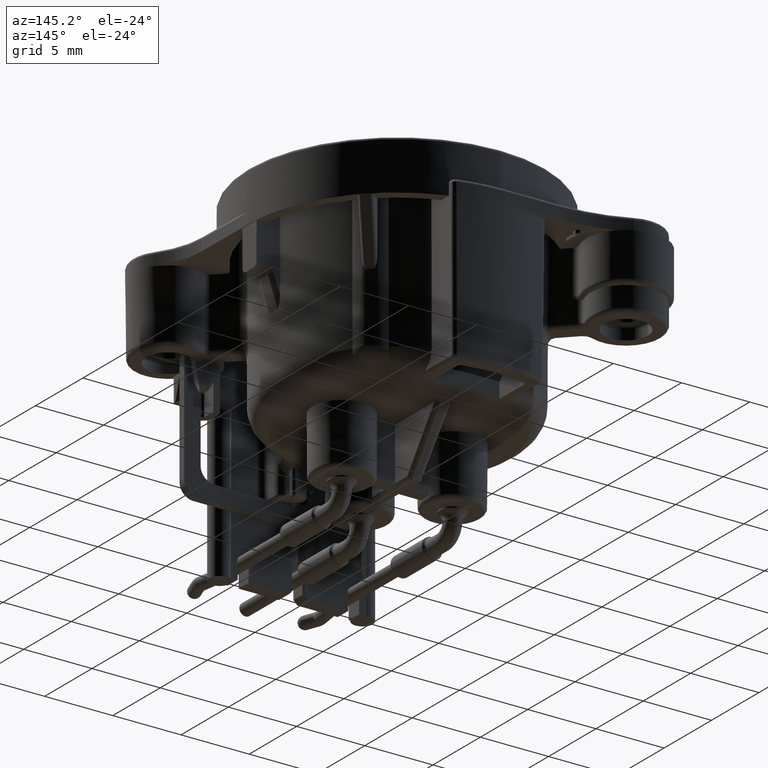
[diagram: clean part render]
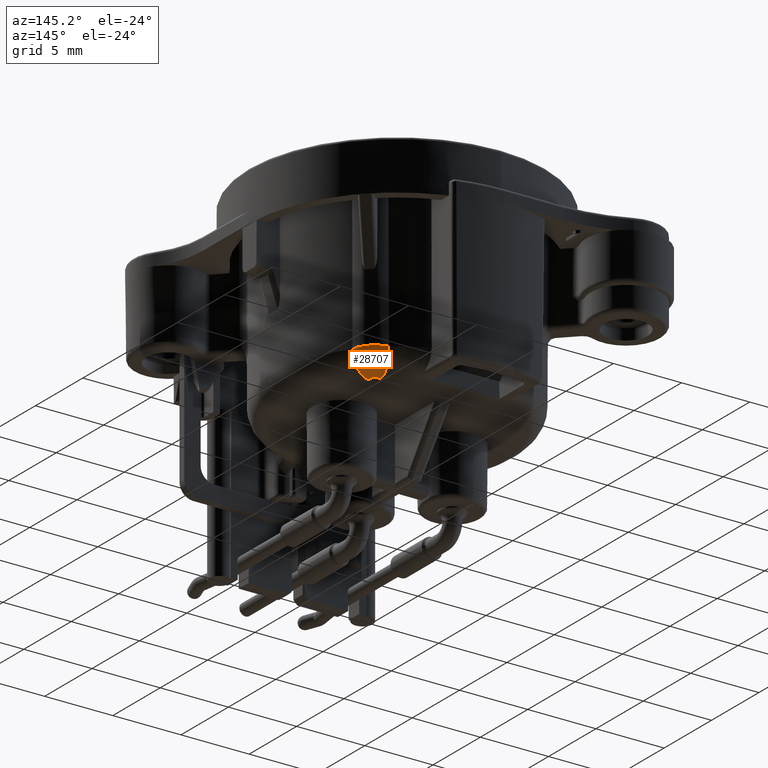
[diagram: same view with one face highlighted and labeled with its STEP entity id]
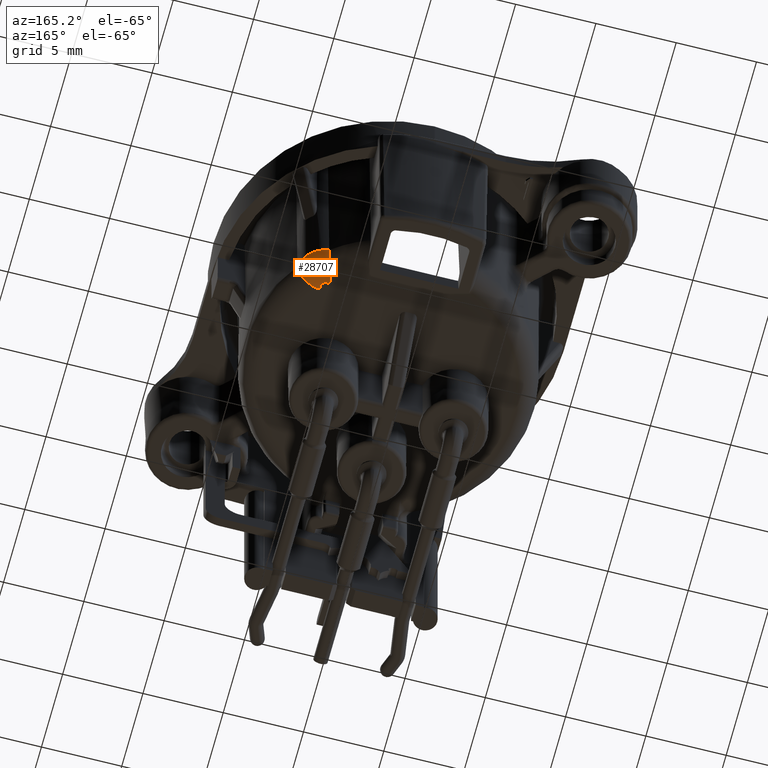
[diagram: same view with one face highlighted and labeled with its STEP entity id]
A machine part, auxiliary view. The second image highlights one B-rep face of the part: STEP entity #28707.
A second angle (auxiliary view) of the same face is appended — the face is thin or edge-on in the first view.
In plain terms, the highlighted face is a freeform B-spline surface patch.
Its self-contained STEP definition (entity closure, byte-faithful):
#1281=CARTESIAN_POINT('',(5.226513206551E0,5.625191021184E0,-1.029786403351E1));
#1282=DIRECTION('',(9.062688847885E-1,4.225793594926E-1,-1.016825427287E-2));
#1283=DIRECTION('',(-1.221163282649E-2,2.128712166340E-3,-9.999231693526E-1));
#1284=AXIS2_PLACEMENT_3D('',#1281,#1282,#1283);
#1286=CARTESIAN_POINT('',(5.151834971858E0,5.749422262955E0,-1.179084419407E1));
#1287=CARTESIAN_POINT('',(5.151912930164E0,5.767179297198E0,-1.178937052638E1));
#1288=CARTESIAN_POINT('',(5.153635435767E0,5.804077576328E0,-1.178582534951E1));
#1289=CARTESIAN_POINT('',(5.159910195311E0,5.863208033947E0,-1.177831704426E1));
#1290=CARTESIAN_POINT('',(5.169596537003E0,5.927130129518E0,-1.176792990102E1));
#1291=CARTESIAN_POINT('',(5.182529142507E0,5.995650075416E0,-1.175398945152E1));
#1292=CARTESIAN_POINT('',(5.198695721380E0,6.069032341749E0,-1.173561272406E1));
#1293=CARTESIAN_POINT('',(5.218008067191E0,6.146951300792E0,-1.171189465639E1));
#1294=CARTESIAN_POINT('',(5.240318341233E0,6.228939546063E0,-1.168186374919E1));
#1295=CARTESIAN_POINT('',(5.265419902735E0,6.314458583924E0,-1.164450688598E1));
#1296=CARTESIAN_POINT('',(5.293606326353E0,6.404598091645E0,-1.159774778109E1));
#1297=CARTESIAN_POINT('',(5.324939812929E0,6.499499727526E0,-1.153923571508E1));
#1298=CARTESIAN_POINT('',(5.359336837602E0,6.598879087682E0,-1.146600758765E1));
#1299=CARTESIAN_POINT('',(5.396053300663E0,6.700734655866E0,-1.137556299427E1));
#1300=CARTESIAN_POINT('',(5.434706132573E0,6.804279434835E0,-1.126312579325E1));
#1301=CARTESIAN_POINT('',(5.473868501970E0,6.906107405885E0,-1.112394997719E1));
#1302=CARTESIAN_POINT('',(5.510503359260E0,6.998997778776E0,-1.095692070897E1));
#1303=CARTESIAN_POINT('',(5.540957906366E0,7.075076749083E0,-1.076309522397E1));
#1304=CARTESIAN_POINT('',(5.562019711057E0,7.126325326900E0,-1.054693415370E1));
#1305=CARTESIAN_POINT('',(5.566736279814E0,7.139854483699E0,-1.039171531672E1));
#1306=CARTESIAN_POINT('',(5.567395175180E0,7.140437789296E0,-1.031442862793E1));
#1344=CARTESIAN_POINT('',(7.140437789296E0,5.567395175180E0,-1.031442862793E1));
#1345=CARTESIAN_POINT('',(7.139739747485E0,5.566606675093E0,-1.040691760874E1));
#1346=CARTESIAN_POINT('',(7.120873984751E0,5.559852398596E0,-1.059016169511E1));
#1347=CARTESIAN_POINT('',(7.051239501331E0,5.531308627800E0,-1.083803079498E1));
#1348=CARTESIAN_POINT('',(6.951304784473E0,5.491552644335E0,-1.105254080009E1));
#1349=CARTESIAN_POINT('',(6.829872194772E0,5.444342699129E0,-1.123406018882E1));
#1350=CARTESIAN_POINT('',(6.700112185976E0,5.395695803370E0,-1.137814976244E1));
#1351=CARTESIAN_POINT('',(6.571529348005E0,5.349572187965E0,-1.148891788384E1));
#1352=CARTESIAN_POINT('',(6.446849491924E0,5.307184622979E0,-1.157407577814E1));
#1353=CARTESIAN_POINT('',(6.326319730280E0,5.268805176606E0,-1.163982316573E1));
#1354=CARTESIAN_POINT('',(6.206995042066E0,5.233834197443E0,-1.169146881570E1));
#1355=CARTESIAN_POINT('',(6.086784085389E0,5.202439500527E0,-1.173162077321E1));
#1356=CARTESIAN_POINT('',(5.968410304297E0,5.176392804647E0,-1.176085466512E1));
#1357=CARTESIAN_POINT('',(5.853610568526E0,5.157658096045E0,-1.178048475615E1));
#1358=CARTESIAN_POINT('',(5.783290774252E0,5.151983664017E0,-1.178803342454E1));
#1359=CARTESIAN_POINT('',(5.749422262955E0,5.151834971858E0,-1.179084419407E1));
#1361=CARTESIAN_POINT('',(5.625191021184E0,5.226513206551E0,-1.029786403351E1));
#1362=DIRECTION('',(4.225793594926E-1,9.062688847885E-1,-1.016825427287E-2));
#1363=DIRECTION('',(8.282082784725E-2,-4.978548979552E-2,-9.953201070412E-1));
#1364=AXIS2_PLACEMENT_3D('',#1361,#1362,#1363);
#11089=CARTESIAN_POINT('',(5.341826381207E0,5.341826381207E0,
-1.179657811540E1));
#11090=DIRECTION('',(7.651482399814E-3,7.651482399814E-3,9.999414531032E-1));
#11091=DIRECTION('',(9.062898674767E-1,-4.226404852920E-1,-3.700851408832E-3));
#11092=AXIS2_PLACEMENT_3D('',#11089,#11090,#11091);
#11094=CARTESIAN_POINT('',(5.353302932851E0,5.353302932851E0,
-1.029675375095E1));
#11095=DIRECTION('',(7.651482399814E-3,7.651482399814E-3,9.999414531032E-1));
#11096=DIRECTION('',(9.928635900971E-1,1.189517269086E-1,-8.507533419595E-3));
#11097=AXIS2_PLACEMENT_3D('',#11094,#11095,#11096);
#11978=CARTESIAN_POINT('',(5.749422262955E0,5.151834971858E0,
-1.179084419407E1));
#11979=CARTESIAN_POINT('',(5.628384075244E0,5.208195763926E0,
-1.179774878765E1));
#11980=VERTEX_POINT('',#11978);
#11981=VERTEX_POINT('',#11979);
#11982=CARTESIAN_POINT('',(5.208195757311E0,5.628384089434E0,
-1.179774878754E1));
#11983=CARTESIAN_POINT('',(5.151834971858E0,5.749422262955E0,
-1.179084419407E1));
#11984=VERTEX_POINT('',#11982);
#11985=VERTEX_POINT('',#11983);
#11986=CARTESIAN_POINT('',(7.140457395026E0,5.567416041287E0,
-1.031206731110E1));
#11987=CARTESIAN_POINT('',(5.567416041287E0,7.140457395026E0,
-1.031206731110E1));
#11988=VERTEX_POINT('',#11986);
#11989=VERTEX_POINT('',#11987);
#28682=CARTESIAN_POINT('',(5.549954735378E0,5.191710496127E0,
-1.179648229751E1));
#28683=CARTESIAN_POINT('',(6.301501902121E0,4.649266255491E0,
-1.182490359791E1));
#28684=CARTESIAN_POINT('',(6.835452661411E0,4.272809994974E0,
-1.116683525881E1));
#28685=CARTESIAN_POINT('',(6.812657281089E0,4.301455598585E0,
-1.024026282862E1));
#28686=CARTESIAN_POINT('',(5.774521079515E0,5.503058163661E0,
-1.180058307422E1));
#28687=CARTESIAN_POINT('',(7.337210165270E0,6.085213183406E0,
-1.184381653139E1));
#28688=CARTESIAN_POINT('',(8.441851960771E0,6.499985562646E0,
-1.119616950686E1));
#28689=CARTESIAN_POINT('',(8.386810664297E0,6.483924151857E0,
-1.026900823820E1));
#28690=CARTESIAN_POINT('',(5.503058163661E0,5.774521079515E0,
-1.180058307422E1));
#28691=CARTESIAN_POINT('',(6.085213183406E0,7.337210165270E0,
-1.184381653139E1));
#28692=CARTESIAN_POINT('',(6.499985562646E0,8.441851960771E0,
-1.119616950686E1));
#28693=CARTESIAN_POINT('',(6.483924151857E0,8.386810664297E0,
-1.026900823820E1));
#28694=CARTESIAN_POINT('',(5.191710496127E0,5.549954735378E0,
-1.179648229751E1));
#28695=CARTESIAN_POINT('',(4.649266255491E0,6.301501902121E0,
-1.182490359791E1));
#28696=CARTESIAN_POINT('',(4.272809994974E0,6.835452661411E0,
-1.116683525881E1));
#28697=CARTESIAN_POINT('',(4.301455598585E0,6.812657281089E0,
-1.024026282862E1));
#28698=(BOUNDED_SURFACE()B_SPLINE_SURFACE(3,3,((#28682,#28683,#28684,#28685),(
#28686,#28687,#28688,#28689),(#28690,#28691,#28692,#28693),(#28694,#28695,
#28696,#28697)),.UNSPECIFIED.,.F.,.F.,.F.)B_SPLINE_SURFACE_WITH_KNOTS((4,4),(4,
4),(0.E0,1.E0),(0.E0,1.E0),.UNSPECIFIED.)GEOMETRIC_REPRESENTATION_ITEM()RATIONAL_B_SPLINE_SURFACE(((2.049881670200E0,1.615873597791E0,1.615873597791E0,
2.049881670200E0),(9.017294279831E-1,7.108121391643E-1,7.108121391643E-1,
9.017294279831E-1),(9.017294279831E-1,7.108121391643E-1,7.108121391643E-1,
9.017294279831E-1),(2.049881670200E0,1.615873597791E0,1.615873597791E0,
2.049881670200E0)))REPRESENTATION_ITEM('')SURFACE());
#28699=ORIENTED_EDGE('',*,*,#15225,.F.);
#28700=ORIENTED_EDGE('',*,*,#15223,.F.);
#28701=ORIENTED_EDGE('',*,*,#14518,.T.);
#28702=ORIENTED_EDGE('',*,*,#15191,.F.);
#28703=ORIENTED_EDGE('',*,*,#15189,.F.);
#28704=ORIENTED_EDGE('',*,*,#28674,.F.);
#28705=EDGE_LOOP('',(#28699,#28700,#28701,#28702,#28703,#28704));
#28706=FACE_OUTER_BOUND('',#28705,.F.);
#28707=ADVANCED_FACE('',(#28706),#28698,.T.);
#1285=CIRCLE('',#1284,1.5E0);
#1307=B_SPLINE_CURVE_WITH_KNOTS('',3,(#1286,#1287,#1288,#1289,#1290,#1291,#1292,
#1293,#1294,#1295,#1296,#1297,#1298,#1299,#1300,#1301,#1302,#1303,#1304,#1305,
#1306),.UNSPECIFIED.,.F.,.F.,(4,1,1,1,1,1,1,1,1,1,1,1,1,1,1,1,1,1,4),(0.E0,
5.555555555556E-2,1.111111111111E-1,1.666666666667E-1,2.222222222222E-1,
2.777777777778E-1,3.333333333333E-1,3.888888888889E-1,4.444444444444E-1,5.E-1,
5.555555555556E-1,6.111111111111E-1,6.666666666667E-1,7.222222222222E-1,
7.777777777778E-1,8.333333333333E-1,8.888888888889E-1,9.444444444444E-1,1.E0),
.UNSPECIFIED.);
#1360=B_SPLINE_CURVE_WITH_KNOTS('',3,(#1344,#1345,#1346,#1347,#1348,#1349,#1350,
#1351,#1352,#1353,#1354,#1355,#1356,#1357,#1358,#1359),.UNSPECIFIED.,.F.,.F.,(4,
1,1,1,1,1,1,1,1,1,1,1,1,4),(0.E0,7.692307692308E-2,1.538461538462E-1,
2.307692307692E-1,3.076923076923E-1,3.846153846154E-1,4.615384615385E-1,
5.384615384615E-1,6.153846153846E-1,6.923076923077E-1,7.692307692308E-1,
8.461538461538E-1,9.230769230769E-1,1.E0),.UNSPECIFIED.);
#1365=CIRCLE('',#1364,1.5E0);
#11093=CIRCLE('',#11092,3.162312452731E-1);
#11098=CIRCLE('',#11097,1.8E0);
#14518=EDGE_CURVE('',#11988,#11989,#11098,.T.);
#15189=EDGE_CURVE('',#11984,#11985,#1285,.T.);
#15191=EDGE_CURVE('',#11985,#11989,#1307,.T.);
#15223=EDGE_CURVE('',#11988,#11980,#1360,.T.);
#15225=EDGE_CURVE('',#11980,#11981,#1365,.T.);
#28674=EDGE_CURVE('',#11981,#11984,#11093,.T.);